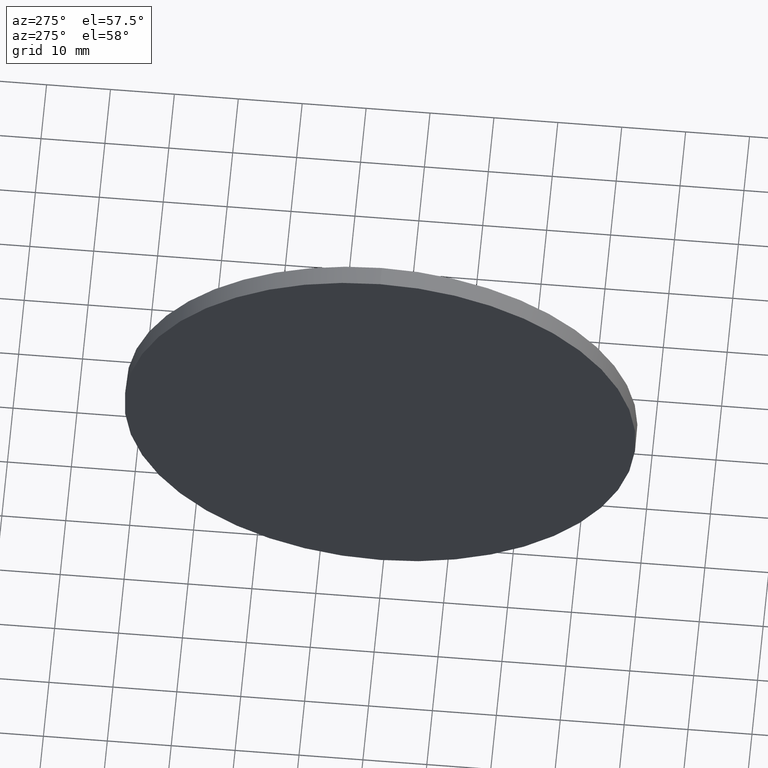
[diagram: clean part render]
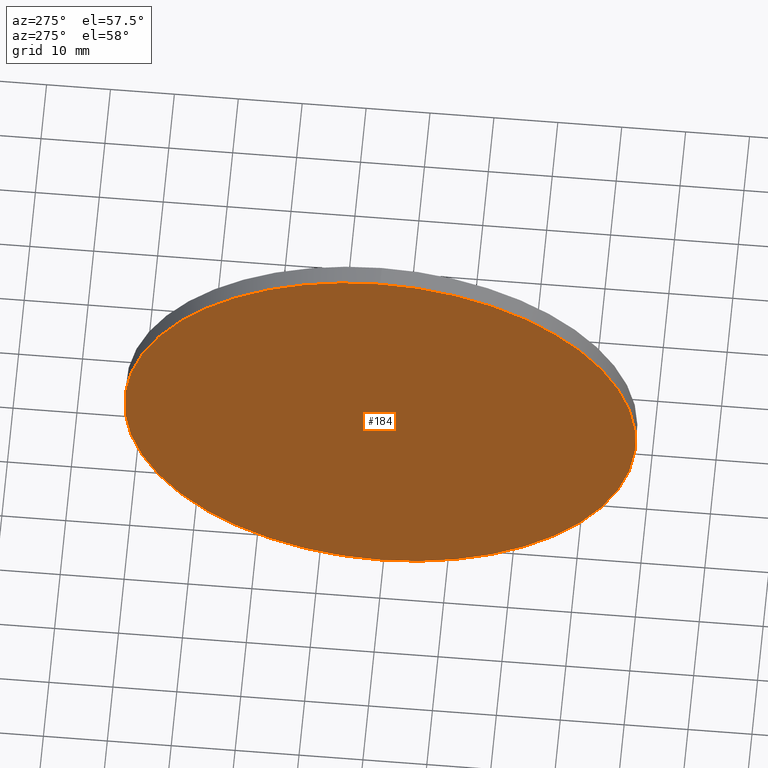
[diagram: same view with one face highlighted and labeled with its STEP entity id]
A machine part, auxiliary view. The second image highlights one B-rep face of the part: STEP entity #184.
In plain terms, the highlighted planar face has unit normal (1, 0, 0).
Its self-contained STEP definition (entity closure, byte-faithful):
#2 = DIRECTION ( 'NONE',  ( 0.0000000000000000000, 0.0000000000000000000, 1.000000000000000000 ) ) ;
#7 = PLANE ( 'NONE',  #159 ) ;
#15 = DIRECTION ( 'NONE',  ( 0.0000000000000000000, 0.0000000000000000000, -1.000000000000000000 ) ) ;
#16 = DIRECTION ( 'NONE',  ( 1.000000000000000000, 0.0000000000000000000, 0.0000000000000000000 ) ) ;
#31 = CARTESIAN_POINT ( 'NONE',  ( 225.9490942240209100, 130.4671098528244200, 0.0000000000000000000 ) ) ;
#41 = EDGE_CURVE ( 'NONE', #84, #105, #168, .T. ) ;
#52 = CARTESIAN_POINT ( 'NONE',  ( 225.9490942240209100, 130.4671098528244200, -40.00000000000000700 ) ) ;
#53 = AXIS2_PLACEMENT_3D ( 'NONE', #176, #76, #2 ) ;
#67 = FACE_OUTER_BOUND ( 'NONE', #100, .T. ) ;
#76 = DIRECTION ( 'NONE',  ( -1.000000000000000000, -0.0000000000000000000, -0.0000000000000000000 ) ) ;
#79 = AXIS2_PLACEMENT_3D ( 'NONE', #31, #181, #110 ) ;
#84 = VERTEX_POINT ( 'NONE', #52 ) ;
#87 = ORIENTED_EDGE ( 'NONE', *, *, #142, .T. ) ;
#89 = ORIENTED_EDGE ( 'NONE', *, *, #41, .T. ) ;
#100 = EDGE_LOOP ( 'NONE', ( #87, #89 ) ) ;
#105 = VERTEX_POINT ( 'NONE', #106 ) ;
#106 = CARTESIAN_POINT ( 'NONE',  ( 225.9490942240209100, 130.4671098528244200, 40.00000000000000700 ) ) ;
#110 = DIRECTION ( 'NONE',  ( 0.0000000000000000000, 0.0000000000000000000, 1.000000000000000000 ) ) ;
#136 = CARTESIAN_POINT ( 'NONE',  ( 225.9490942240209100, 130.4671098528244200, 0.0000000000000000000 ) ) ;
#142 = EDGE_CURVE ( 'NONE', #105, #84, #185, .T. ) ;
#159 = AXIS2_PLACEMENT_3D ( 'NONE', #136, #16, #15 ) ;
#168 = CIRCLE ( 'NONE', #53, 40.00000000000000700 ) ;
#176 = CARTESIAN_POINT ( 'NONE',  ( 225.9490942240209100, 130.4671098528244200, 0.0000000000000000000 ) ) ;
#181 = DIRECTION ( 'NONE',  ( -1.000000000000000000, -0.0000000000000000000, -0.0000000000000000000 ) ) ;
#184 = ADVANCED_FACE ( 'NONE', ( #67 ), #7, .F. ) ;
#185 = CIRCLE ( 'NONE', #79, 40.00000000000000700 ) ;